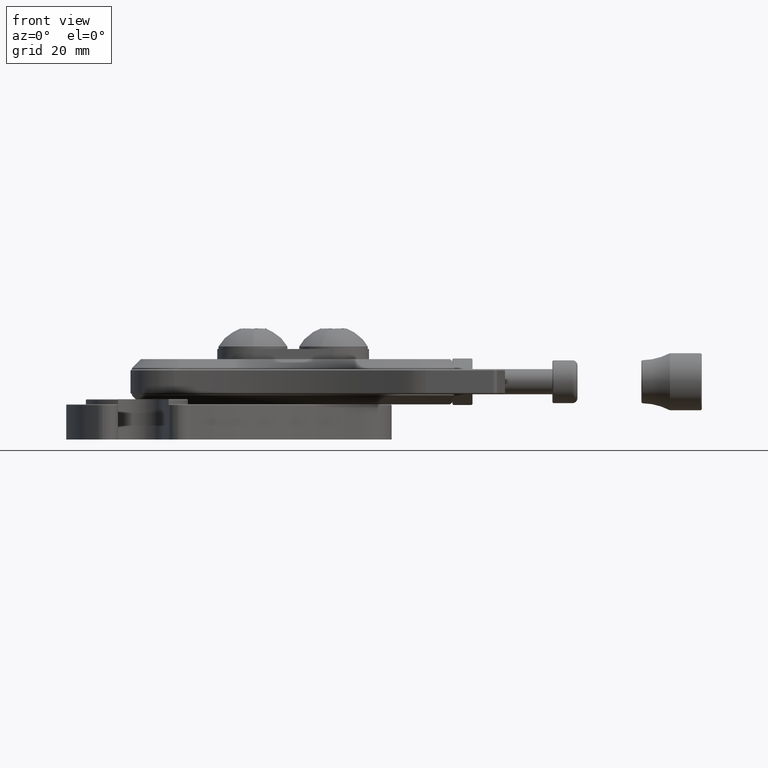
[diagram: clean part render]
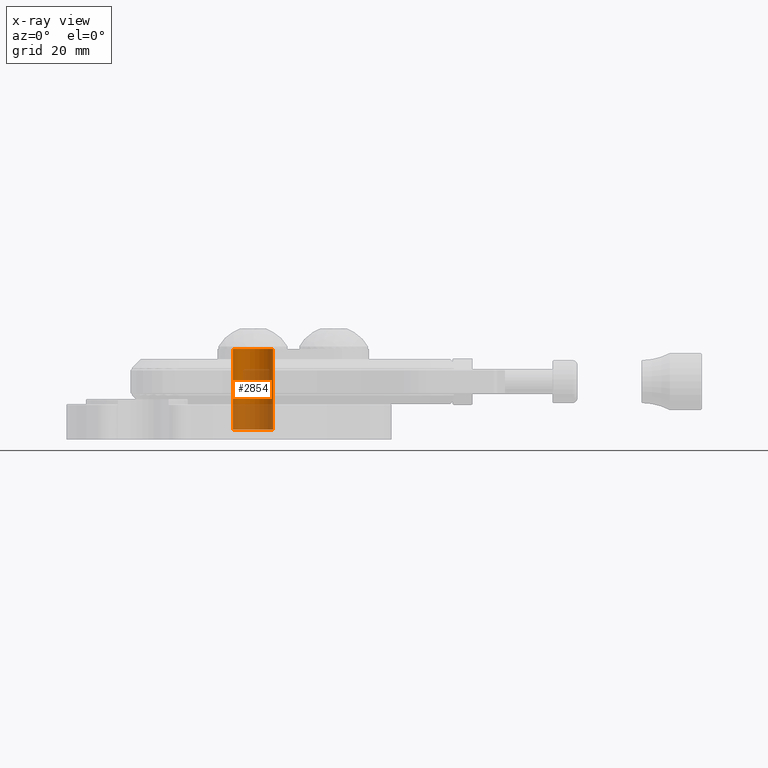
[diagram: x-ray — body ghosted, one internal face saturated and labeled with its STEP entity id]
A machine part, front view, then the same camera in x-ray: the body is ghosted and one INTERNAL B-rep face — a face not visible from any outside direction — is saturated and labeled: STEP entity #2854.
In plain terms, the highlighted cylindrical surface (edge-blend (fillet) strip) has radius 4 mm, axis along (-0, -0, 1).
Its self-contained STEP definition (entity closure, byte-faithful):
#179 = AXIS2_PLACEMENT_3D ( 'NONE', #438, #439, #440 ) ;
#428 = DIRECTION ( 'NONE',  ( -1.000000000000000000, -0.0000000000000000000, -0.0000000000000000000 ) ) ;
#429 = CARTESIAN_POINT ( 'NONE',  ( -0.8070866141732283600, 0.0000000000000000000, 0.1574803149606298900 ) ) ;
#433 = CARTESIAN_POINT ( 'NONE',  ( -0.8070866141732283600, 1.928577636452524300E-017, -0.1574803149606298900 ) ) ;
#434 = DIRECTION ( 'NONE',  ( -1.000000000000000000, -0.0000000000000000000, -0.0000000000000000000 ) ) ;
#438 = CARTESIAN_POINT ( 'NONE',  ( -0.6299212598425196800, 0.0000000000000000000, 0.0000000000000000000 ) ) ;
#439 = DIRECTION ( 'NONE',  ( -1.000000000000000000, -0.0000000000000000000, -0.0000000000000000000 ) ) ;
#440 = DIRECTION ( 'NONE',  ( 0.0000000000000000000, 0.0000000000000000000, 1.000000000000000000 ) ) ;
#567 = VERTEX_POINT ( 'NONE', #1028 ) ;
#870 = EDGE_CURVE ( 'NONE', #2572, #567, #5113, .T. ) ;
#872 = EDGE_CURVE ( 'NONE', #567, #1667, #5118, .T. ) ;
#873 = EDGE_CURVE ( 'NONE', #2575, #1667, #5119, .T. ) ;
#1028 = CARTESIAN_POINT ( 'NONE',  ( -0.6299212598425196800, 0.0000000000000000000, 0.1574803149606298600 ) ) ;
#1667 = VERTEX_POINT ( 'NONE', #2696 ) ;
#1995 = EDGE_LOOP ( 'NONE', ( #2447, #2446, #2445, #2444 ) ) ;
#2444 = ORIENTED_EDGE ( 'NONE', *, *, #870, .F. ) ;
#2445 = ORIENTED_EDGE ( 'NONE', *, *, #872, .F. ) ;
#2446 = ORIENTED_EDGE ( 'NONE', *, *, #873, .T. ) ;
#2447 = ORIENTED_EDGE ( 'NONE', *, *, #4514, .T. ) ;
#2572 = VERTEX_POINT ( 'NONE', #5563 ) ;
#2575 = VERTEX_POINT ( 'NONE', #5550 ) ;
#2696 = CARTESIAN_POINT ( 'NONE',  ( -0.6299212598425196800, 1.928577636452524300E-017, -0.1574803149606298600 ) ) ;
#2854 = ADVANCED_FACE ( 'NONE', ( #4342 ), #4347, .T. ) ;
#3468 = AXIS2_PLACEMENT_3D ( 'NONE', #5068, #5063, #5065 ) ;
#3501 = AXIS2_PLACEMENT_3D ( 'NONE', #7391, #7392, #7393 ) ;
#4342 = FACE_OUTER_BOUND ( 'NONE', #1995, .T. ) ;
#4347 = CYLINDRICAL_SURFACE ( 'NONE', #3468, 0.1574803149606298900 ) ;
#4421 = CIRCLE ( 'NONE', #3501, 0.1574803149606299200 ) ;
#4514 = EDGE_CURVE ( 'NONE', #2572, #2575, #4421, .T. ) ;
#5063 = DIRECTION ( 'NONE',  ( -1.000000000000000000, -0.0000000000000000000, -0.0000000000000000000 ) ) ;
#5065 = DIRECTION ( 'NONE',  ( 0.0000000000000000000, 0.0000000000000000000, 1.000000000000000000 ) ) ;
#5068 = CARTESIAN_POINT ( 'NONE',  ( -0.8070866141732283600, 0.0000000000000000000, 0.0000000000000000000 ) ) ;
#5113 = LINE ( 'NONE', #429, #5117 ) ;
#5117 = VECTOR ( 'NONE', #428, 39.37007874015748100 ) ;
#5118 = CIRCLE ( 'NONE', #179, 0.1574803149606298600 ) ;
#5119 = LINE ( 'NONE', #433, #5121 ) ;
#5121 = VECTOR ( 'NONE', #434, 39.37007874015748100 ) ;
#5550 = CARTESIAN_POINT ( 'NONE',  ( 0.0000000000000000000, 1.928577636452524600E-017, -0.1574803149606299200 ) ) ;
#5563 = CARTESIAN_POINT ( 'NONE',  ( 0.0000000000000000000, 0.0000000000000000000, 0.1574803149606299200 ) ) ;
#7391 = CARTESIAN_POINT ( 'NONE',  ( 0.0000000000000000000, 0.0000000000000000000, 0.0000000000000000000 ) ) ;
#7392 = DIRECTION ( 'NONE',  ( -1.000000000000000000, -0.0000000000000000000, -0.0000000000000000000 ) ) ;
#7393 = DIRECTION ( 'NONE',  ( 0.0000000000000000000, 0.0000000000000000000, 1.000000000000000000 ) ) ;